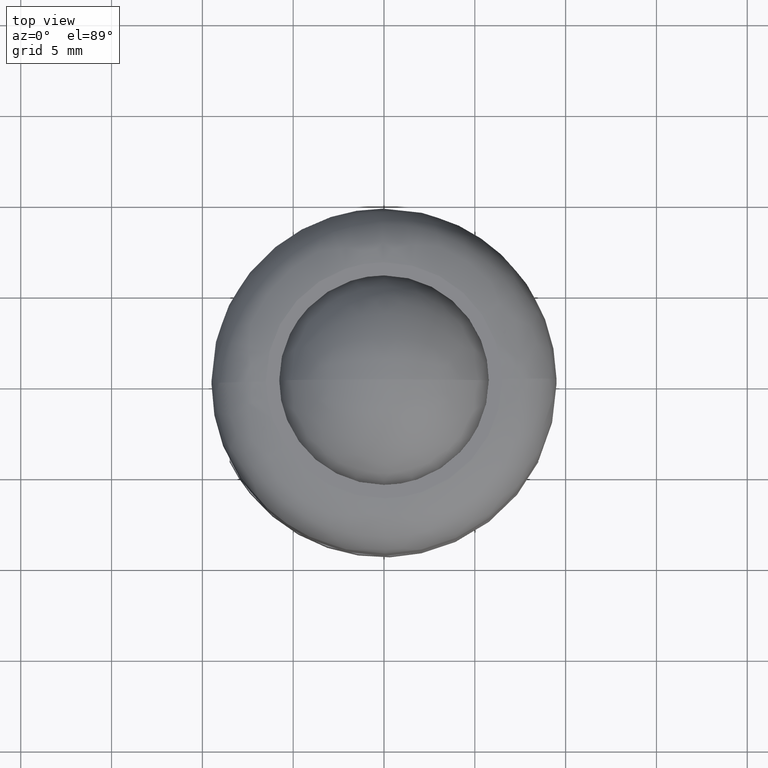
[diagram: clean part render]
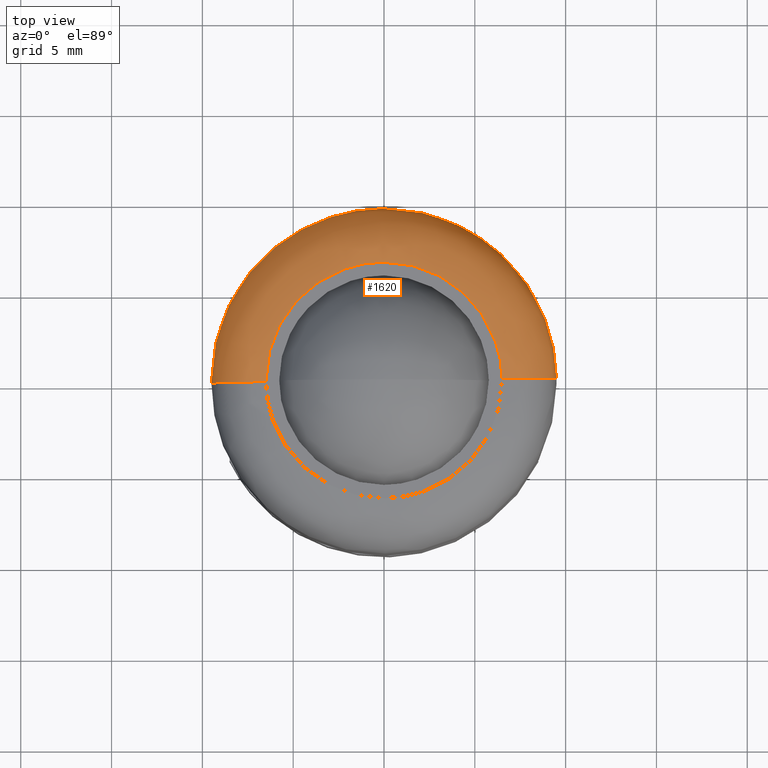
[diagram: same view with one face highlighted and labeled with its STEP entity id]
A machine part, top view. The second image highlights one B-rep face of the part: STEP entity #1620.
In plain terms, the highlighted face is a freeform B-spline surface patch.
Its self-contained STEP definition (entity closure, byte-faithful):
#1407=CARTESIAN_POINT('',(-6.499486825749849,-0.081679260661820,11.0));
#1408=VERTEX_POINT('',#1407);
#1409=CARTESIAN_POINT('',(-6.500000000000000,0.0,11.0));
#1410=VERTEX_POINT('',#1409);
#1411=CARTESIAN_POINT('',(-6.499486825749849,-0.081679260661820,11.0));
#1412=CARTESIAN_POINT('',(-6.500000000000000,0.0,11.0));
#1413=QUASI_UNIFORM_CURVE('',1,(#1411,#1412),.UNSPECIFIED.,.F.,.U.);
#1414=EDGE_CURVE('',#1408,#1410,#1413,.T.);
#1452=CARTESIAN_POINT('',(6.499486825749849,0.081679260661820,11.0));
#1453=VERTEX_POINT('',#1452);
#1459=CARTESIAN_POINT('',(-0.040827712705664,6.499871775615701,11.0));
#1460=VERTEX_POINT('',#1459);
#1461=CARTESIAN_POINT('',(-0.040827712705664,6.499871775615701,11.0));
#1462=CARTESIAN_POINT('',(0.343160564590614,6.502315790194211,11.000000000000020));
#1463=CARTESIAN_POINT('',(1.124807446414590,6.437767159464483,10.999999999999950));
#1464=CARTESIAN_POINT('',(2.331903296858545,6.113349550608249,11.000000000000069));
#1465=CARTESIAN_POINT('',(3.440979466168603,5.562116597397841,10.999999999999959));
#1466=CARTESIAN_POINT('',(4.306011484179962,4.899313526740263,10.999999999999860));
#1467=CARTESIAN_POINT('',(4.954611310329715,4.234980251729557,11.000000000000110));
#1468=CARTESIAN_POINT('',(5.529297752274903,3.471335666223825,10.999999999999931));
#1469=CARTESIAN_POINT('',(5.998770372572196,2.576428600380980,11.0));
#1470=CARTESIAN_POINT('',(6.384302011851498,1.417652718058624,11.0));
#1471=CARTESIAN_POINT('',(6.493122349655709,0.598064868476771,11.0));
#1472=CARTESIAN_POINT('',(6.499486825749849,0.081679260661820,11.0));
#1473=B_SPLINE_CURVE_WITH_KNOTS('',3,(#1461,#1462,#1463,#1464,#1465,#1466,#1467,#1468,#1469,#1470,#1471,#1472),.UNSPECIFIED.,.F.,.U.,(4,1,1,1,1,1,1,1,1,4),(0.000000028042496,1.151986262405185,2.343714253265852,3.734062136585582,4.846341811064109,5.601066371524654,6.514724367737053,7.706452178616257,8.620105885851185,10.169338550861999),.UNSPECIFIED.);
#1474=EDGE_CURVE('',#1460,#1453,#1473,.T.);
#1476=CARTESIAN_POINT('',(-6.500000000000000,0.0,11.0));
#1477=CARTESIAN_POINT('',(-6.500137909637597,0.542910235490984,11.000000000000011));
#1478=CARTESIAN_POINT('',(-6.398211899289196,1.350557112147675,11.000000000000011));
#1479=CARTESIAN_POINT('',(-6.080815999146844,2.335444848803801,10.999999999999959));
#1480=CARTESIAN_POINT('',(-5.731141983728920,3.108640340141511,11.000000000000041));
#1481=CARTESIAN_POINT('',(-5.167333388987851,4.009706533972385,10.999999999999989));
#1482=CARTESIAN_POINT('',(-4.321305426858525,4.914764190560227,11.000000000000011));
#1483=CARTESIAN_POINT('',(-3.345474779466188,5.607541694004214,11.000000000000050));
#1484=CARTESIAN_POINT('',(-2.294638799666839,6.118316677210310,10.999999999999821));
#1485=CARTESIAN_POINT('',(-1.205629176170173,6.425806488690822,11.000000000000480));
#1486=CARTESIAN_POINT('',(-0.398331132388747,6.497635795154528,10.999999999999480));
#1487=CARTESIAN_POINT('',(-0.040827712705664,6.499871775615701,11.0));
#1488=B_SPLINE_CURVE_WITH_KNOTS('',3,(#1476,#1477,#1478,#1479,#1480,#1481,#1482,#1483,#1484,#1485,#1486,#1487),.UNSPECIFIED.,.F.,.U.,(4,1,1,1,1,1,1,1,1,4),(0.000000028030088,1.628685415544677,2.423168264146039,3.098481655176761,4.171034324798725,5.601080366481980,6.792811822092038,7.746195974396001,9.096824040134473,10.169363960363230),.UNSPECIFIED.);
#1489=EDGE_CURVE('',#1410,#1460,#1488,.T.);
#1502=CARTESIAN_POINT('',(-6.288681766799652,-0.254930658863528,10.992738098923134));
#1503=CARTESIAN_POINT('',(-6.289780430648994,-0.167506369774706,10.992738098923127));
#1504=CARTESIAN_POINT('',(-6.369949807569316,6.211834124722786,10.992738098923128));
#1505=CARTESIAN_POINT('',(-0.079057841423265,6.290891966146053,10.992738098923130));
#1506=CARTESIAN_POINT('',(6.211834124722786,6.369949807569316,10.992738098923128));
#1507=CARTESIAN_POINT('',(6.292003501637478,-0.009390686479863,10.992738098923134));
#1508=CARTESIAN_POINT('',(6.293102165481316,-0.096814975130722,10.992738098923128));
#1509=CARTESIAN_POINT('',(-9.728423911327727,-0.394370968254703,11.232611387236874));
#1510=CARTESIAN_POINT('',(-9.730123515165033,-0.259127911610839,11.232611387236872));
#1511=CARTESIAN_POINT('',(-9.854143415091501,9.609542647108468,11.232611387236870));
#1512=CARTESIAN_POINT('',(-0.122300383991516,9.731843031099988,11.232611387236872));
#1513=CARTESIAN_POINT('',(9.609542647108468,9.854143415091501,11.232611387236870));
#1514=CARTESIAN_POINT('',(9.733562547026228,-0.014527142934277,11.232611387236872));
#1515=CARTESIAN_POINT('',(9.735262150855020,-0.149770198900625,11.232611387236874));
#1516=CARTESIAN_POINT('',(-9.488653735486860,-0.384651161915378,7.791388624474089));
#1517=CARTESIAN_POINT('',(-9.490311450286987,-0.252741353469611,7.791388624474089));
#1518=CARTESIAN_POINT('',(-9.611274711904498,9.372702460943824,7.791388624474090));
#1519=CARTESIAN_POINT('',(-0.119286125480340,9.491988586424160,7.791388624474089));
#1520=CARTESIAN_POINT('',(9.372702460943820,9.611274711904498,7.791388624474090));
#1521=CARTESIAN_POINT('',(9.493665722552835,-0.014169101832494,7.791388624474089));
#1522=CARTESIAN_POINT('',(9.495323437344656,-0.146078909617444,7.791388624474088));
#1530=(BOUNDED_SURFACE()B_SPLINE_SURFACE(2,2,((#1502,#1509,#1516),(#1503,#1510,#1517),(#1504,#1511,#1518),(#1505,#1512,#1519),(#1506,#1513,#1520),(#1507,#1514,#1521),(#1508,#1515,#1522)),.UNSPECIFIED.,.F.,.F.,.U.)B_SPLINE_SURFACE_WITH_KNOTS((3,1,2,1,3),(3,3),(0.0,0.314561670597372,16.042645119498570,31.770728568399772,32.085290237393387),(0.0,5.468189893464841),.UNSPECIFIED.)GEOMETRIC_REPRESENTATION_ITEM()RATIONAL_B_SPLINE_SURFACE(((0.927077710728574,0.608371547751752,0.927077722481536),(0.921709902984754,0.604849058248067,0.921709914669666),(0.647951709431553,0.425202094466791,0.647951717645915),(0.916342095240933,0.601326568744382,0.916342106857795),(0.647951709431553,0.425202094466791,0.647951717645915),(0.921709902957387,0.604849058230108,0.921709914642299),(0.927077710673841,0.608371547715835,0.927077722426803)))REPRESENTATION_ITEM('')SURFACE());
#1531=ORIENTED_EDGE('',*,*,#1414,.T.);
#1532=ORIENTED_EDGE('',*,*,#1489,.T.);
#1533=ORIENTED_EDGE('',*,*,#1474,.T.);
#1534=CARTESIAN_POINT('',(9.499249919936247,0.119377378892208,8.000000000039684));
#1535=VERTEX_POINT('',#1534);
#1536=CARTESIAN_POINT('',(6.499486825749849,0.081679260661820,11.0));
#1537=CARTESIAN_POINT('',(6.708094537599276,0.084300840445249,11.000035759019079));
#1538=CARTESIAN_POINT('',(7.051661314733392,0.088618455110748,10.963999863887439));
#1539=CARTESIAN_POINT('',(7.548653367894246,0.094864170108296,10.823172509512860));
#1540=CARTESIAN_POINT('',(7.962962704248823,0.100070808752958,10.633391304250720));
#1541=CARTESIAN_POINT('',(8.382414068089009,0.105342067407276,10.353095104989761));
#1542=CARTESIAN_POINT('',(8.804360753494553,0.110644684829287,9.956310699409087));
#1543=CARTESIAN_POINT('',(9.126110119913527,0.114688119329290,9.487327622781669));
#1544=CARTESIAN_POINT('',(9.337396053312245,0.117343356332837,9.002462025731793));
#1545=CARTESIAN_POINT('',(9.465394561177250,0.118951917600723,8.539949901811905));
#1546=CARTESIAN_POINT('',(9.499274773687789,0.119377691260754,8.196348302873147));
#1547=CARTESIAN_POINT('',(9.499249919936247,0.119377378892208,8.000000000039684));
#1548=B_SPLINE_CURVE_WITH_KNOTS('',3,(#1536,#1537,#1538,#1539,#1540,#1541,#1542,#1543,#1544,#1545,#1546,#1547),.UNSPECIFIED.,.F.,.U.,(4,1,1,1,1,1,1,1,1,4),(0.000000037390105,0.625865661849762,1.030839781804916,1.546268267566843,1.988054500403283,2.540287186265230,3.276599503121553,3.681577817240033,4.123375024858150,4.712418526938748),.UNSPECIFIED.);
#1549=EDGE_CURVE('',#1453,#1535,#1548,.T.);
#1550=ORIENTED_EDGE('',*,*,#1549,.T.);
#1551=CARTESIAN_POINT('',(6.452258844570720,6.972686412184252,8.000000000033804));
#1552=VERTEX_POINT('',#1551);
#1553=CARTESIAN_POINT('',(6.452258844570720,6.972686412184252,8.000000000033804));
#1554=CARTESIAN_POINT('',(6.776470197073996,6.672686057482670,8.000000000034454));
#1555=CARTESIAN_POINT('',(7.451905928551256,5.954050631020746,8.000000000035819));
#1556=CARTESIAN_POINT('',(8.258658686563562,4.772420631459309,8.000000000037437));
#1557=CARTESIAN_POINT('',(8.923990372826253,3.372713530387466,8.000000000038725));
#1558=CARTESIAN_POINT('',(9.372031076380264,1.844620348560474,8.000000000039526));
#1559=CARTESIAN_POINT('',(9.491988579162440,0.701599588561791,8.000000000039718));
#1560=CARTESIAN_POINT('',(9.499249919936247,0.119377378892208,8.000000000039684));
#1561=B_SPLINE_CURVE_WITH_KNOTS('',3,(#1553,#1554,#1555,#1556,#1557,#1558,#1559,#1560),.UNSPECIFIED.,.F.,.U.,(4,1,1,1,1,4),(6.970202E-009,1.325154012332375,2.951491387658702,4.276641733900075,5.963207779361167,7.710004901989865),.UNSPECIFIED.);
#1562=EDGE_CURVE('',#1552,#1535,#1561,.T.);
#1563=ORIENTED_EDGE('',*,*,#1562,.F.);
#1564=CARTESIAN_POINT('',(-0.059687770972142,9.499812491307203,8.000000000019842));
#1565=VERTEX_POINT('',#1564);
#1566=CARTESIAN_POINT('',(-0.059687770972142,9.499812491307203,8.000000000019842));
#1567=CARTESIAN_POINT('',(0.555008168096688,9.503751560801783,8.000000000021176));
#1568=CARTESIAN_POINT('',(1.449615051487407,9.422196094456741,8.000000000023038));
#1569=CARTESIAN_POINT('',(2.756136815465463,9.113583251091633,8.000000000025985));
#1570=CARTESIAN_POINT('',(3.809908948308365,8.732917970923554,8.000000000027914));
#1571=CARTESIAN_POINT('',(5.134922144446422,8.044806839850089,8.000000000031259));
#1572=CARTESIAN_POINT('',(5.973797741352630,7.415553144220847,8.000000000032667));
#1573=CARTESIAN_POINT('',(6.452258844570720,6.972686412184252,8.000000000033804));
#1574=B_SPLINE_CURVE_WITH_KNOTS('',3,(#1566,#1567,#1568,#1569,#1570,#1571,#1572,#1573),.UNSPECIFIED.,.F.,.U.,(4,1,1,1,1,4),(5.921771E-009,1.844104950299844,2.682338665693864,4.023495968684388,5.197022316276504,7.152891072263372),.UNSPECIFIED.);
#1575=EDGE_CURVE('',#1565,#1552,#1574,.T.);
#1576=ORIENTED_EDGE('',*,*,#1575,.F.);
#1577=CARTESIAN_POINT('',(-9.500000000000000,0.0,8.0));
#1578=VERTEX_POINT('',#1577);
#1579=CARTESIAN_POINT('',(-9.500000000000000,0.0,8.0));
#1580=CARTESIAN_POINT('',(-9.500043314078225,0.541878327921937,8.000000000000030));
#1581=CARTESIAN_POINT('',(-9.425279194380417,1.412731271092887,8.000000000000130));
#1582=CARTESIAN_POINT('',(-9.129467846426431,2.716743520615952,8.000000000000833));
#1583=CARTESIAN_POINT('',(-8.672476184862598,3.975277625555647,8.000000000001787));
#1584=CARTESIAN_POINT('',(-8.002539862550679,5.180707581332147,8.000000000003260));
#1585=CARTESIAN_POINT('',(-7.297800732493164,6.106008460717154,8.000000000004620));
#1586=CARTESIAN_POINT('',(-6.480514539920784,6.985781817230376,8.000000000006473));
#1587=CARTESIAN_POINT('',(-5.521857818557161,7.778211413700010,8.000000000008379));
#1588=CARTESIAN_POINT('',(-4.420695257374943,8.430625252263479,8.000000000010740));
#1589=CARTESIAN_POINT('',(-3.344030244357712,8.917811872059472,8.000000000012914));
#1590=CARTESIAN_POINT('',(-1.935995759585300,9.357547483598875,8.000000000016073));
#1591=CARTESIAN_POINT('',(-0.756381396899258,9.495568807861146,8.000000000018250));
#1592=CARTESIAN_POINT('',(-0.059687770972142,9.499812491307203,8.000000000019842));
#1593=B_SPLINE_CURVE_WITH_KNOTS('',3,(#1579,#1580,#1581,#1582,#1583,#1584,#1585,#1586,#1587,#1588,#1589,#1590,#1591,#1592),.UNSPECIFIED.,.F.,.U.,(4,1,1,1,1,1,1,1,1,1,1,4),(0.000000022854913,1.625628600763434,2.612613689591232,4.006017432282054,5.631654901376367,6.734765263749843,7.489493419075678,9.231246722473983,10.450473409984900,11.321350813467321,12.772809948622930,14.862900070273501),.UNSPECIFIED.);
#1594=EDGE_CURVE('',#1578,#1565,#1593,.T.);
#1595=ORIENTED_EDGE('',*,*,#1594,.F.);
#1596=CARTESIAN_POINT('',(-9.499249919936247,-0.119377378892208,8.000000000039684));
#1597=VERTEX_POINT('',#1596);
#1598=CARTESIAN_POINT('',(-9.499249919936247,-0.119377378892208,8.000000000039684));
#1599=CARTESIAN_POINT('',(-9.500000000000000,0.0,8.0));
#1600=QUASI_UNIFORM_CURVE('',1,(#1598,#1599),.UNSPECIFIED.,.F.,.U.);
#1601=EDGE_CURVE('',#1597,#1578,#1600,.T.);
#1602=ORIENTED_EDGE('',*,*,#1601,.F.);
#1603=CARTESIAN_POINT('',(-6.499486825749849,-0.081679260661820,11.0));
#1604=CARTESIAN_POINT('',(-6.708094537599279,-0.084300840445250,11.000035759019079));
#1605=CARTESIAN_POINT('',(-7.051661314733392,-0.088618455110748,10.963999863887439));
#1606=CARTESIAN_POINT('',(-7.548653367894246,-0.094864170108296,10.823172509512860));
#1607=CARTESIAN_POINT('',(-7.962962704248823,-0.100070808752958,10.633391304250720));
#1608=CARTESIAN_POINT('',(-8.382414068089009,-0.105342067407276,10.353095104989761));
#1609=CARTESIAN_POINT('',(-8.804360753494553,-0.110644684829287,9.956310699409084));
#1610=CARTESIAN_POINT('',(-9.126110119913520,-0.114688119329290,9.487327622781665));
#1611=CARTESIAN_POINT('',(-9.337396053312247,-0.117343356332838,9.002462025731795));
#1612=CARTESIAN_POINT('',(-9.465394561177249,-0.118951917600724,8.539949901811905));
#1613=CARTESIAN_POINT('',(-9.499274773687793,-0.119377691260754,8.196348302873149));
#1614=CARTESIAN_POINT('',(-9.499249919936247,-0.119377378892208,8.000000000039684));
#1615=B_SPLINE_CURVE_WITH_KNOTS('',3,(#1603,#1604,#1605,#1606,#1607,#1608,#1609,#1610,#1611,#1612,#1613,#1614),.UNSPECIFIED.,.F.,.U.,(4,1,1,1,1,1,1,1,1,4),(0.000000037390105,0.625865661849762,1.030839781804916,1.546268267566843,1.988054500403283,2.540287186265230,3.276599503121553,3.681577817240033,4.123375024858150,4.712418526938748),.UNSPECIFIED.);
#1616=EDGE_CURVE('',#1408,#1597,#1615,.T.);
#1617=ORIENTED_EDGE('',*,*,#1616,.F.);
#1618=EDGE_LOOP('',(#1531,#1532,#1533,#1550,#1563,#1576,#1595,#1602,#1617));
#1619=FACE_OUTER_BOUND('',#1618,.T.);
#1620=ADVANCED_FACE('',(#1619),#1530,.T.);